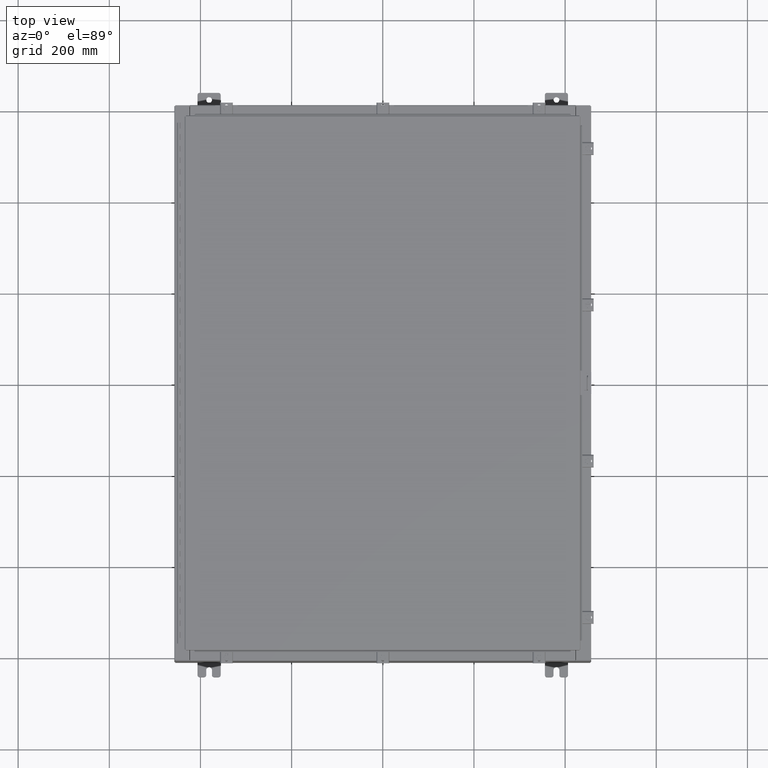
[diagram: clean part render]
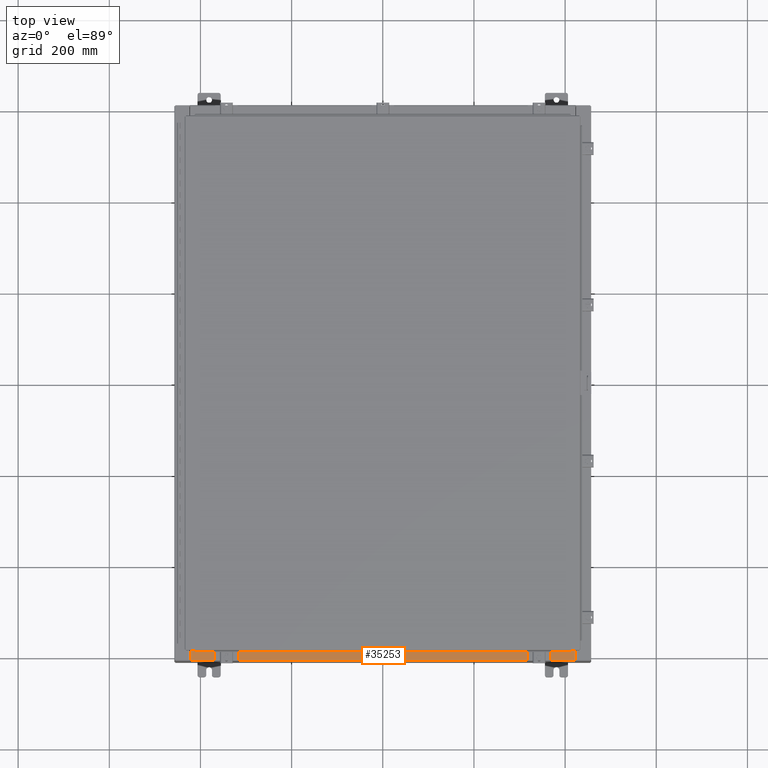
[diagram: same view with one face highlighted and labeled with its STEP entity id]
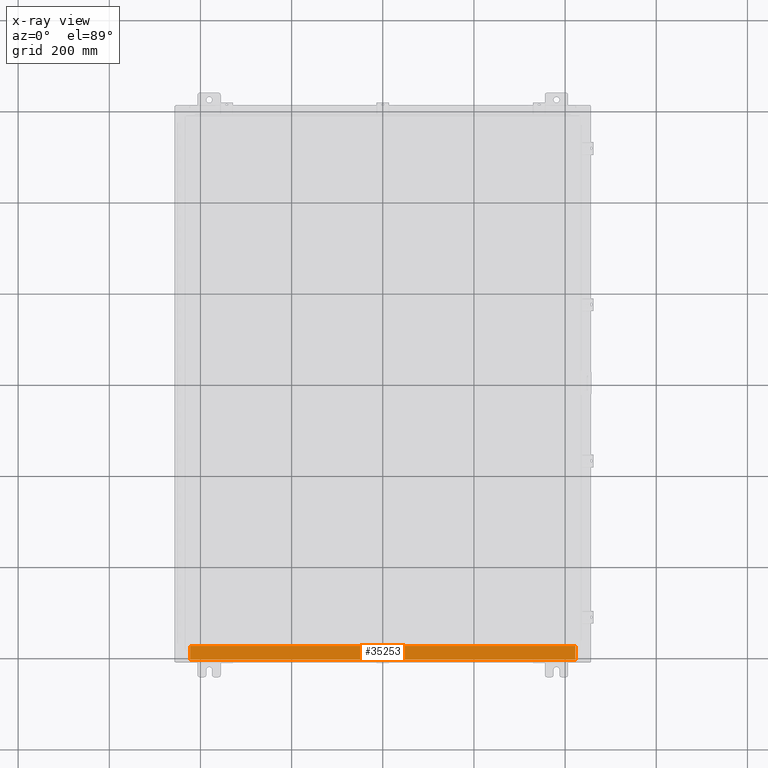
[diagram: x-ray of the same camera — body ghosted, the highlighted face saturated]
A machine part, top view. The second image highlights one B-rep face of the part: STEP entity #35253.
The next image is the same camera in x-ray: the body ghosted, the highlighted face saturated — about 0% of this face is hidden behind the body in this view.
In plain terms, the highlighted planar face has unit normal (-0, -0, 1).
Its self-contained STEP definition (entity closure, byte-faithful):
#438 = CARTESIAN_POINT ( 'NONE',  ( 2.880088825576501100E-018, -0.08770000000000081900, 5.000000000000000000 ) ) ;
#1295 = EDGE_LOOP ( 'NONE', ( #51008, #49770, #7728, #14532 ) ) ;
#1768 = CARTESIAN_POINT ( 'NONE',  ( 16.63720000000000400, -0.08770000000000047200, 5.000000000000000000 ) ) ;
#6751 = CARTESIAN_POINT ( 'NONE',  ( 16.63720000000000000, -1.300299999999999800, 5.000000000000004400 ) ) ;
#7728 = ORIENTED_EDGE ( 'NONE', *, *, #44348, .F. ) ;
#8437 = CARTESIAN_POINT ( 'NONE',  ( -16.63720000000000000, -1.287299999999999200, 5.000000000000004400 ) ) ;
#9972 = LINE ( 'NONE', #46114, #18455 ) ;
#11547 = CARTESIAN_POINT ( 'NONE',  ( 16.63720000000000400, -1.287299999999999900, 5.000000000000002700 ) ) ;
#14014 = CARTESIAN_POINT ( 'NONE',  ( 16.63720000000000000, -1.287299999999999900, 5.000000000000004400 ) ) ;
#14532 = ORIENTED_EDGE ( 'NONE', *, *, #44842, .T. ) ;
#18455 = VECTOR ( 'NONE', #37974, 39.37007874015748100 ) ;
#19160 = DIRECTION ( 'NONE',  ( -0.0000000000000000000, -1.000000000000000000, 3.566381192773190000E-015 ) ) ;
#21199 = PLANE ( 'NONE',  #34696 ) ;
#22181 = EDGE_CURVE ( 'NONE', #32998, #32778, #40527, .T. ) ;
#25343 = DIRECTION ( 'NONE',  ( 0.0000000000000000000, -1.000000000000000000, 3.566381192773190000E-015 ) ) ;
#28118 = VERTEX_POINT ( 'NONE', #53583 ) ;
#29574 = DIRECTION ( 'NONE',  ( -1.000000000000000000, -3.284023746380717400E-017, 1.171208052571274300E-031 ) ) ;
#32778 = VERTEX_POINT ( 'NONE', #8437 ) ;
#32998 = VERTEX_POINT ( 'NONE', #14014 ) ;
#34696 = AXIS2_PLACEMENT_3D ( 'NONE', #41484, #50241, #25343 ) ;
#35253 = ADVANCED_FACE ( 'NONE', ( #47019 ), #21199, .T. ) ;
#37974 = DIRECTION ( 'NONE',  ( -0.0000000000000000000, 1.000000000000000000, -3.566381192773190000E-015 ) ) ;
#39449 = VERTEX_POINT ( 'NONE', #1768 ) ;
#40527 = LINE ( 'NONE', #11547, #50312 ) ;
#41484 = CARTESIAN_POINT ( 'NONE',  ( 0.0000000000000000000, 1.782631094477737600E-014, 5.000000000000000000 ) ) ;
#42357 = EDGE_CURVE ( 'NONE', #32778, #28118, #9972, .T. ) ;
#43418 = LINE ( 'NONE', #6751, #44705 ) ;
#44348 = EDGE_CURVE ( 'NONE', #39449, #32998, #43418, .T. ) ;
#44649 = LINE ( 'NONE', #438, #45970 ) ;
#44705 = VECTOR ( 'NONE', #19160, 39.37007874015748100 ) ;
#44842 = EDGE_CURVE ( 'NONE', #39449, #28118, #44649, .T. ) ;
#45970 = VECTOR ( 'NONE', #29574, 39.37007874015748100 ) ;
#46114 = CARTESIAN_POINT ( 'NONE',  ( -16.63720000000000000, -0.07469999999999973900, 5.000000000000000000 ) ) ;
#47019 = FACE_OUTER_BOUND ( 'NONE', #1295, .T. ) ;
#49151 = DIRECTION ( 'NONE',  ( -1.000000000000000000, 0.0000000000000000000, 0.0000000000000000000 ) ) ;
#49770 = ORIENTED_EDGE ( 'NONE', *, *, #22181, .F. ) ;
#50241 = DIRECTION ( 'NONE',  ( 0.0000000000000000000, 3.566381192773190000E-015, 1.000000000000000000 ) ) ;
#50312 = VECTOR ( 'NONE', #49151, 39.37007874015748100 ) ;
#51008 = ORIENTED_EDGE ( 'NONE', *, *, #42357, .F. ) ;
#53583 = CARTESIAN_POINT ( 'NONE',  ( -16.63720000000000000, -0.08770000000000081900, 5.000000000000000000 ) ) ;